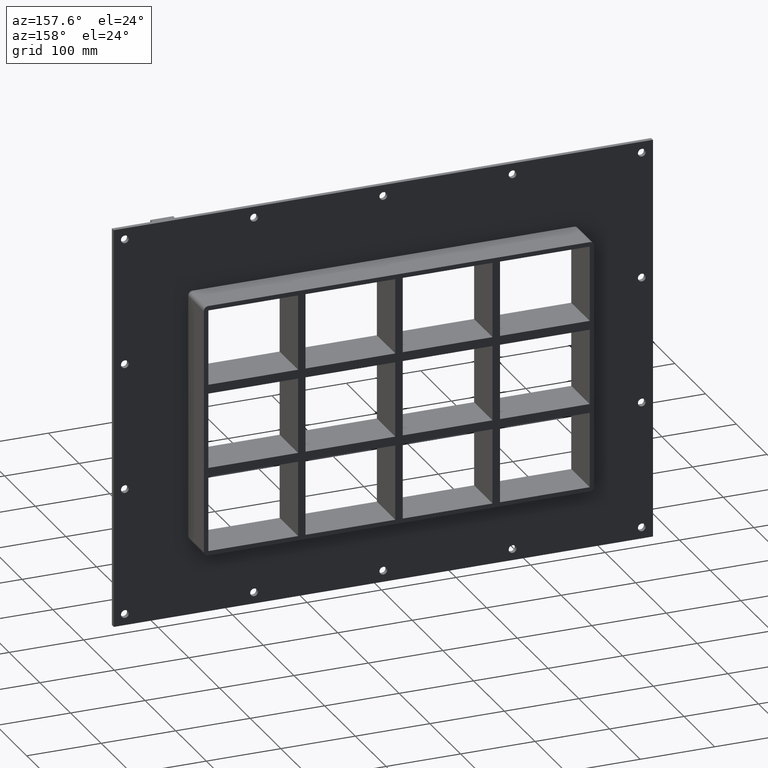
[diagram: clean part render]
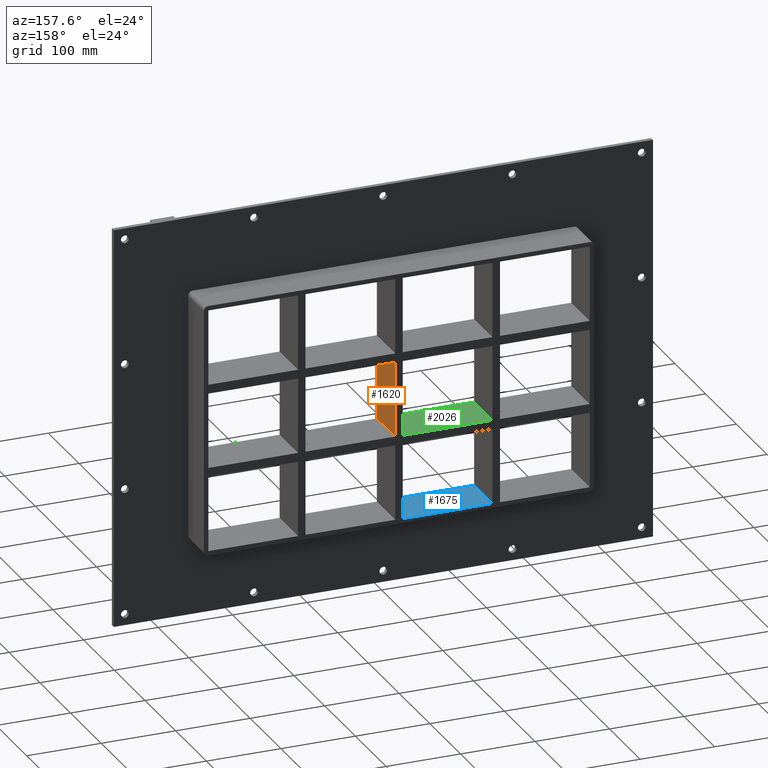
[diagram: same view with three faces highlighted in distinct colors, each labeled with its STEP entity id]
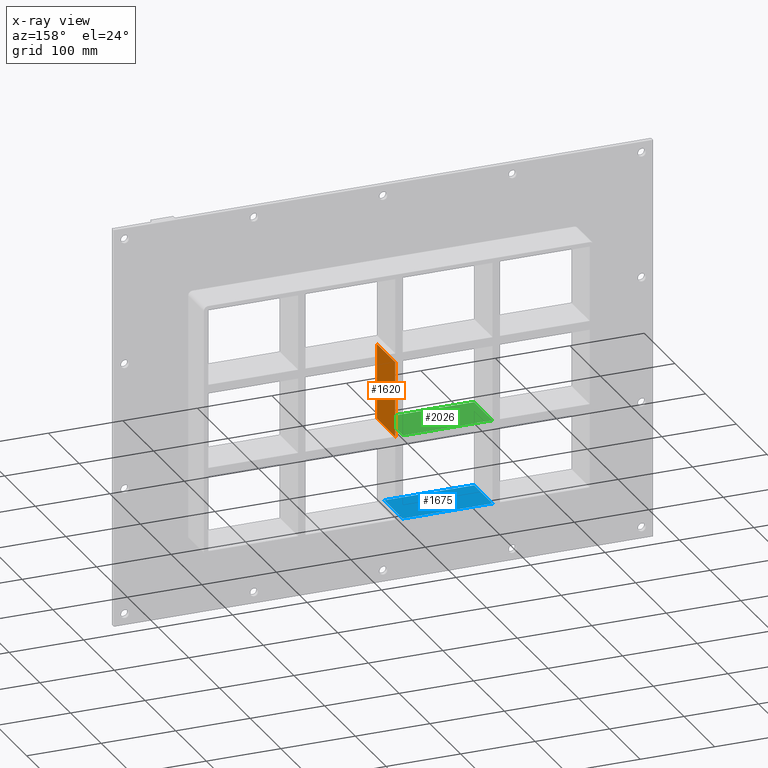
[diagram: x-ray of the same camera — body ghosted, the three highlighted faces saturated]
A machine part, auxiliary view with three faces highlighted in distinct colors.
The next image is the same camera in x-ray (body ghosted, the three faces saturated) — at least one of them is partly hidden behind the body in this view.
Their STEP definitions:

[orange] entity #1620 — the highlighted planar face has unit normal (1, 0, 0).
#595=CARTESIAN_POINT('',(5.000000000007283,-3.0,50.499999999988901));
#596=VERTEX_POINT('',#595);
#603=CARTESIAN_POINT('',(5.000000000007283,57.0,50.499999999988901));
#604=VERTEX_POINT('',#603);
#605=CARTESIAN_POINT('',(5.000000000007283,57.0,50.499999999988894));
#606=DIRECTION('',(0.0,-1.0,0.0));
#607=VECTOR('',#606,60.0);
#608=LINE('',#605,#607);
#609=EDGE_CURVE('',#604,#596,#608,.T.);
#1235=CARTESIAN_POINT('',(5.000000000007283,57.0,-50.499999999999545));
#1236=VERTEX_POINT('',#1235);
#1237=CARTESIAN_POINT('',(5.000000000007283,57.0,50.499999999988916));
#1238=DIRECTION('',(0.0,0.0,-1.0));
#1239=VECTOR('',#1238,100.99999999998846);
#1240=LINE('',#1237,#1239);
#1241=EDGE_CURVE('',#604,#1236,#1240,.T.);
#1597=CARTESIAN_POINT('',(5.000000000007283,-3.0,163.50000000000006));
#1598=DIRECTION('',(1.0,0.0,0.0));
#1599=DIRECTION('',(0.0,0.0,-1.0));
#1600=AXIS2_PLACEMENT_3D('',#1597,#1598,#1599);
#1601=PLANE('',#1600);
#1602=ORIENTED_EDGE('',*,*,#609,.T.);
#1603=CARTESIAN_POINT('',(5.000000000007283,-3.0,-50.499999999999545));
#1604=VERTEX_POINT('',#1603);
#1605=CARTESIAN_POINT('',(5.000000000007283,-3.0,50.499999999988916));
#1606=DIRECTION('',(0.0,0.0,-1.0));
#1607=VECTOR('',#1606,100.99999999998846);
#1608=LINE('',#1605,#1607);
#1609=EDGE_CURVE('',#596,#1604,#1608,.T.);
#1610=ORIENTED_EDGE('',*,*,#1609,.T.);
#1611=CARTESIAN_POINT('',(5.000000000007283,57.0,-50.499999999999545));
#1612=DIRECTION('',(0.0,-1.0,0.0));
#1613=VECTOR('',#1612,60.0);
#1614=LINE('',#1611,#1613);
#1615=EDGE_CURVE('',#1236,#1604,#1614,.T.);
#1616=ORIENTED_EDGE('',*,*,#1615,.F.);
#1617=ORIENTED_EDGE('',*,*,#1241,.F.);
#1618=EDGE_LOOP('',(#1602,#1610,#1616,#1617));
#1619=FACE_OUTER_BOUND('',#1618,.T.);
#1620=ADVANCED_FACE('',(#1619),#1601,.T.);

[blue] entity #1675 — the highlighted planar face has unit normal (0, 0, -1).
#1318=CARTESIAN_POINT('',(-4.999999999999041,57.0,-163.50000000000006));
#1319=VERTEX_POINT('',#1318);
#1336=CARTESIAN_POINT('',(-125.49999999999272,57.0,-163.49999999998178));
#1337=VERTEX_POINT('',#1336);
#1344=CARTESIAN_POINT('',(-125.49999999999272,57.0,-163.50000000000006));
#1345=DIRECTION('',(1.0,0.0,0.0));
#1346=VECTOR('',#1345,120.49999999999369);
#1347=LINE('',#1344,#1346);
#1348=EDGE_CURVE('',#1337,#1319,#1347,.T.);
#1580=CARTESIAN_POINT('',(-4.999999999999041,-3.0,-163.50000000000006));
#1581=VERTEX_POINT('',#1580);
#1582=CARTESIAN_POINT('',(-4.999999999999041,-3.0,-163.50000000000006));
#1583=DIRECTION('',(0.0,1.0,0.0));
#1584=VECTOR('',#1583,60.000000000000007);
#1585=LINE('',#1582,#1584);
#1586=EDGE_CURVE('',#1581,#1319,#1585,.T.);
#1652=CARTESIAN_POINT('',(256.0,0.0,-163.50000000000006));
#1653=DIRECTION('',(0.0,0.0,-1.0));
#1654=DIRECTION('',(-1.0,0.0,0.0));
#1655=AXIS2_PLACEMENT_3D('',#1652,#1653,#1654);
#1656=PLANE('',#1655);
#1657=ORIENTED_EDGE('',*,*,#1586,.T.);
#1658=ORIENTED_EDGE('',*,*,#1348,.F.);
#1659=CARTESIAN_POINT('',(-125.49999999999272,-3.0,-163.49999999998178));
#1660=VERTEX_POINT('',#1659);
#1661=CARTESIAN_POINT('',(-125.49999999999272,57.000000000000007,-163.50000000000006));
#1662=DIRECTION('',(0.0,-1.0,0.0));
#1663=VECTOR('',#1662,60.000000000000007);
#1664=LINE('',#1661,#1663);
#1665=EDGE_CURVE('',#1337,#1660,#1664,.T.);
#1666=ORIENTED_EDGE('',*,*,#1665,.T.);
#1667=CARTESIAN_POINT('',(-4.999999999999034,-3.0,-163.50000000000006));
#1668=DIRECTION('',(-1.0,0.0,0.0));
#1669=VECTOR('',#1668,120.49999999999369);
#1670=LINE('',#1667,#1669);
#1671=EDGE_CURVE('',#1581,#1660,#1670,.T.);
#1672=ORIENTED_EDGE('',*,*,#1671,.F.);
#1673=EDGE_LOOP('',(#1657,#1658,#1666,#1672));
#1674=FACE_OUTER_BOUND('',#1673,.T.);
#1675=ADVANCED_FACE('',(#1674),#1656,.F.);

[green] entity #2026 — the highlighted planar face has unit normal (0, 0, 1).
#1260=CARTESIAN_POINT('',(-125.49999999999272,57.0,-50.499999999999545));
#1261=VERTEX_POINT('',#1260);
#1268=CARTESIAN_POINT('',(-4.999999999999047,57.0,-50.499999999999545));
#1269=VERTEX_POINT('',#1268);
#1270=CARTESIAN_POINT('',(-125.49999999999272,57.0,-50.499999999999545));
#1271=DIRECTION('',(1.0,0.0,0.0));
#1272=VECTOR('',#1271,120.49999999999369);
#1273=LINE('',#1270,#1272);
#1274=EDGE_CURVE('',#1261,#1269,#1273,.T.);
#1549=CARTESIAN_POINT('',(-4.999999999999047,-3.0,-50.499999999999545));
#1550=VERTEX_POINT('',#1549);
#1551=CARTESIAN_POINT('',(-4.999999999999044,-3.0,-50.499999999999545));
#1552=DIRECTION('',(0.0,1.0,0.0));
#1553=VECTOR('',#1552,60.0);
#1554=LINE('',#1551,#1553);
#1555=EDGE_CURVE('',#1550,#1269,#1554,.T.);
#1826=CARTESIAN_POINT('',(-125.49999999999272,-3.0,-50.499999999999545));
#1827=VERTEX_POINT('',#1826);
#1828=CARTESIAN_POINT('',(-125.49999999999272,-3.0,-50.499999999999545));
#1829=DIRECTION('',(1.0,0.0,0.0));
#1830=VECTOR('',#1829,120.49999999999369);
#1831=LINE('',#1828,#1830);
#1832=EDGE_CURVE('',#1827,#1550,#1831,.T.);
#2010=CARTESIAN_POINT('',(-255.99999999999741,-3.0,-50.499999999999545));
#2011=DIRECTION('',(0.0,0.0,1.0));
#2012=DIRECTION('',(1.0,0.0,0.0));
#2013=AXIS2_PLACEMENT_3D('',#2010,#2011,#2012);
#2014=PLANE('',#2013);
#2015=ORIENTED_EDGE('',*,*,#1555,.T.);
#2016=ORIENTED_EDGE('',*,*,#1274,.F.);
#2017=CARTESIAN_POINT('',(-125.49999999999272,-3.0,-50.499999999999545));
#2018=DIRECTION('',(0.0,1.0,0.0));
#2019=VECTOR('',#2018,60.0);
#2020=LINE('',#2017,#2019);
#2021=EDGE_CURVE('',#1827,#1261,#2020,.T.);
#2022=ORIENTED_EDGE('',*,*,#2021,.F.);
#2023=ORIENTED_EDGE('',*,*,#1832,.T.);
#2024=EDGE_LOOP('',(#2015,#2016,#2022,#2023));
#2025=FACE_OUTER_BOUND('',#2024,.T.);
#2026=ADVANCED_FACE('',(#2025),#2014,.T.);